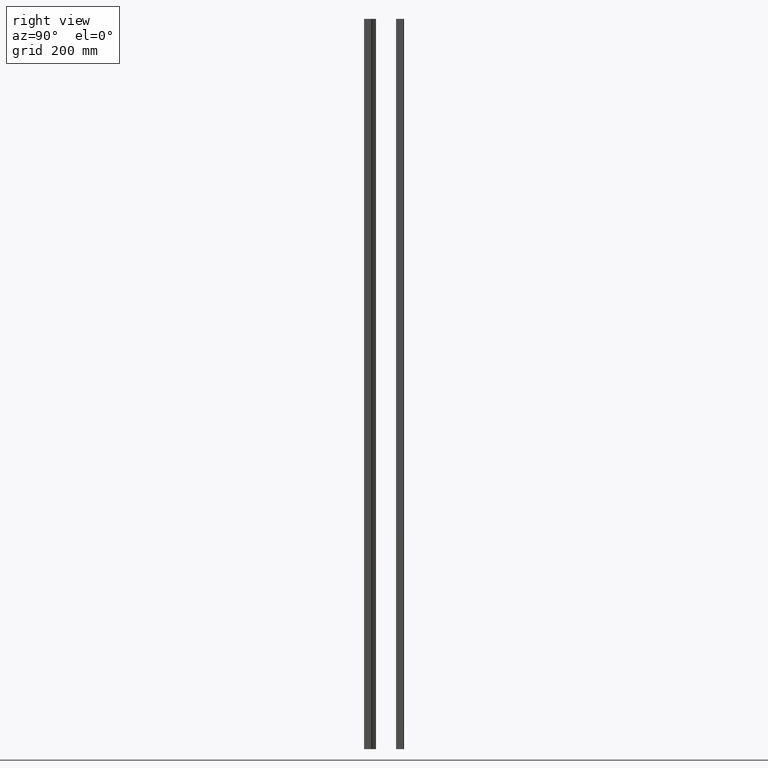
[diagram: clean part render]
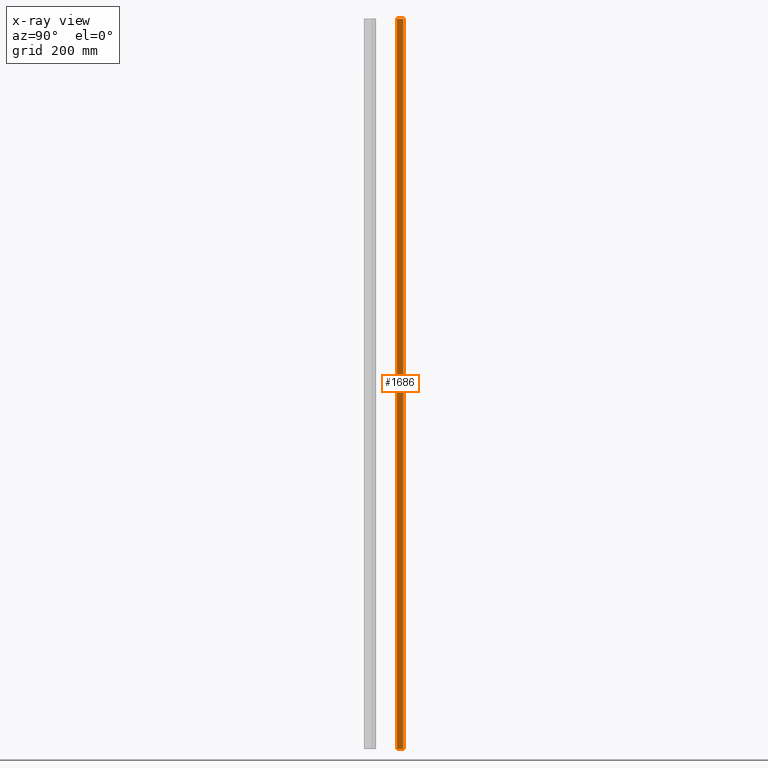
[diagram: x-ray — body ghosted, one internal face saturated and labeled with its STEP entity id]
A machine part, right view, then the same camera in x-ray: the body is ghosted and one INTERNAL B-rep face — a face not visible from any outside direction — is saturated and labeled: STEP entity #1686.
In plain terms, the highlighted planar face has unit normal (1, 0, 0).
Its self-contained STEP definition (entity closure, byte-faithful):
#72 = DIRECTION ( 'NONE',  ( 2.168404344971008868E-16, 1.000000000000000000, -0.000000000000000000 ) ) ;
#194 = EDGE_CURVE ( 'NONE', #849, #458, #1462, .T. ) ;
#262 = VECTOR ( 'NONE', #72, 1000.000000000000000 ) ;
#308 = AXIS2_PLACEMENT_3D ( 'NONE', #1324, #965, #1157 ) ;
#357 = VERTEX_POINT ( 'NONE', #1711 ) ;
#411 = CARTESIAN_POINT ( 'NONE',  ( 9.099999999999997868, 2.000000000000000000, -1825.000000000000000 ) ) ;
#421 = EDGE_LOOP ( 'NONE', ( #2065, #1873, #748, #2049 ) ) ;
#458 = VERTEX_POINT ( 'NONE', #1271 ) ;
#496 = CARTESIAN_POINT ( 'NONE',  ( 9.099999999999997868, 2.000000000000000000, 0.000000000000000000 ) ) ;
#725 = EDGE_CURVE ( 'NONE', #849, #2297, #2352, .T. ) ;
#748 = ORIENTED_EDGE ( 'NONE', *, *, #194, .F. ) ;
#798 = VECTOR ( 'NONE', #1906, 1000.000000000000000 ) ;
#849 = VERTEX_POINT ( 'NONE', #857 ) ;
#857 = CARTESIAN_POINT ( 'NONE',  ( 9.099999999999997868, 2.000000000000000000, -1825.000000000000000 ) ) ;
#965 = DIRECTION ( 'NONE',  ( 1.000000000000000000, -2.168404344971009361E-16, 0.000000000000000000 ) ) ;
#991 = VECTOR ( 'NONE', #1048, 1000.000000000000000 ) ;
#1048 = DIRECTION ( 'NONE',  ( 0.000000000000000000, 0.000000000000000000, 1.000000000000000000 ) ) ;
#1115 = PLANE ( 'NONE',  #308 ) ;
#1157 = DIRECTION ( 'NONE',  ( 2.168404344971009361E-16, 1.000000000000000000, 0.000000000000000000 ) ) ;
#1271 = CARTESIAN_POINT ( 'NONE',  ( 9.099999999999999645, 18.00000000000000355, -1825.000000000000000 ) ) ;
#1324 = CARTESIAN_POINT ( 'NONE',  ( 9.100000000000001421, 18.00000000000000355, -1825.000000000000000 ) ) ;
#1462 = LINE ( 'NONE', #1614, #262 ) ;
#1494 = LINE ( 'NONE', #1543, #798 ) ;
#1515 = DIRECTION ( 'NONE',  ( 0.000000000000000000, 0.000000000000000000, 1.000000000000000000 ) ) ;
#1543 = CARTESIAN_POINT ( 'NONE',  ( 9.100000000000001421, 18.00000000000000355, 0.000000000000000000 ) ) ;
#1614 = CARTESIAN_POINT ( 'NONE',  ( 9.100000000000001421, 18.00000000000000355, -1825.000000000000000 ) ) ;
#1686 = ADVANCED_FACE ( 'NONE', ( #2301 ), #1115, .F. ) ;
#1706 = CARTESIAN_POINT ( 'NONE',  ( 9.099999999999999645, 18.00000000000000355, -1825.000000000000000 ) ) ;
#1711 = CARTESIAN_POINT ( 'NONE',  ( 9.099999999999999645, 18.00000000000000355, 0.000000000000000000 ) ) ;
#1866 = LINE ( 'NONE', #1706, #2503 ) ;
#1873 = ORIENTED_EDGE ( 'NONE', *, *, #2475, .F. ) ;
#1906 = DIRECTION ( 'NONE',  ( 2.168404344971008868E-16, 1.000000000000000000, -0.000000000000000000 ) ) ;
#2049 = ORIENTED_EDGE ( 'NONE', *, *, #725, .T. ) ;
#2065 = ORIENTED_EDGE ( 'NONE', *, *, #2450, .T. ) ;
#2297 = VERTEX_POINT ( 'NONE', #496 ) ;
#2301 = FACE_OUTER_BOUND ( 'NONE', #421, .T. ) ;
#2352 = LINE ( 'NONE', #411, #991 ) ;
#2450 = EDGE_CURVE ( 'NONE', #2297, #357, #1494, .T. ) ;
#2475 = EDGE_CURVE ( 'NONE', #458, #357, #1866, .T. ) ;
#2503 = VECTOR ( 'NONE', #1515, 1000.000000000000000 ) ;